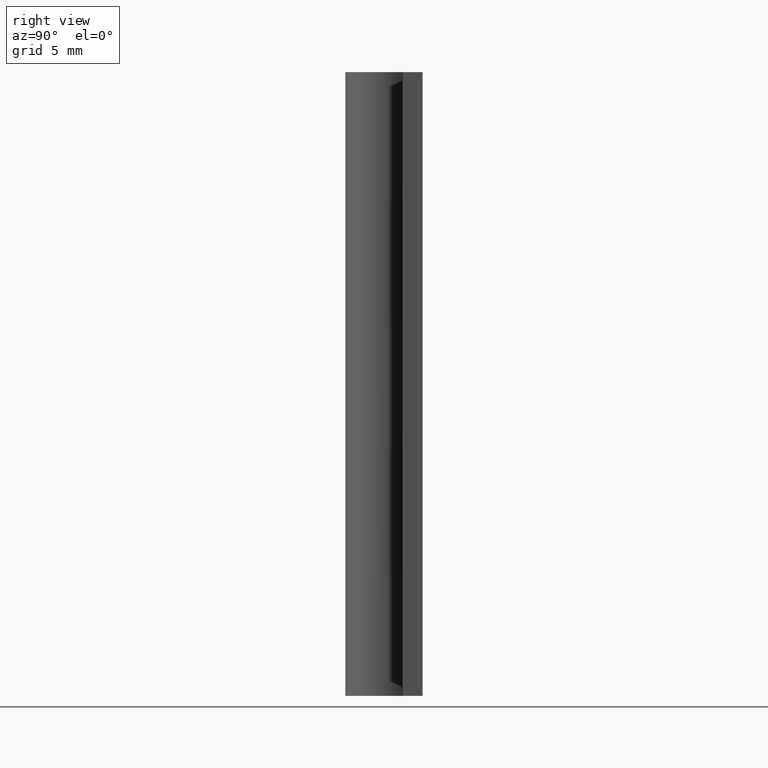
[diagram: clean part render]
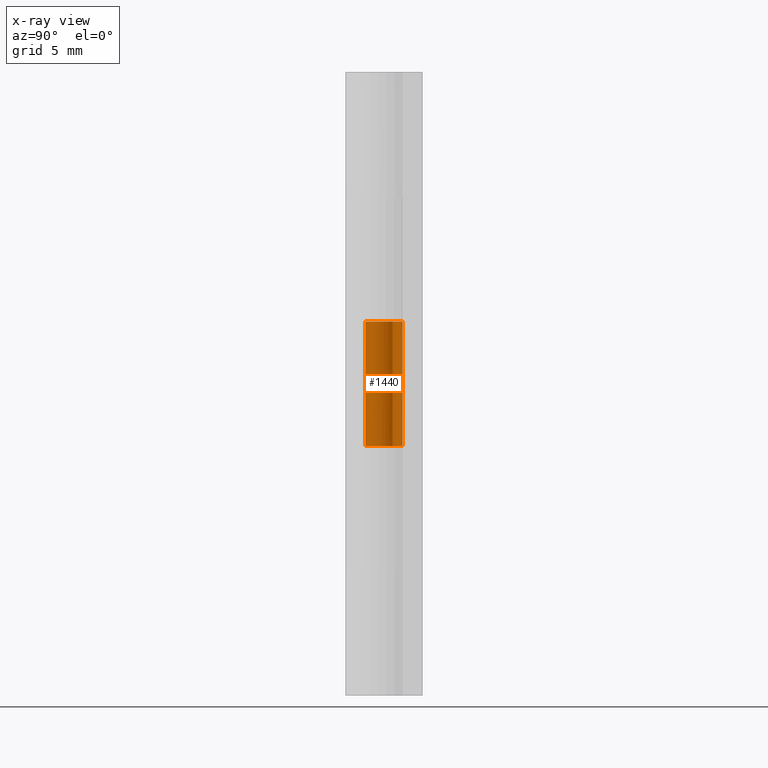
[diagram: x-ray — body ghosted, one internal face saturated and labeled with its STEP entity id]
A machine part, right view, then the same camera in x-ray: the body is ghosted and one INTERNAL B-rep face — a face not visible from any outside direction — is saturated and labeled: STEP entity #1440.
In plain terms, the highlighted face is a freeform B-spline surface patch.
Its self-contained STEP definition (entity closure, byte-faithful):
#789=CARTESIAN_POINT('',(-2.755364E-016,1.500000000000000,20.0));
#790=VERTEX_POINT('',#789);
#796=CARTESIAN_POINT('',(1.325797621821314,0.701612903225806,20.0));
#797=VERTEX_POINT('',#796);
#798=CARTESIAN_POINT('',(0.0,1.500000000000000,20.0));
#799=CARTESIAN_POINT('',(-1.140047230937307,1.500000000000000,19.999999999999996));
#800=CARTESIAN_POINT('',(-1.445249296287461,0.401565027835593,20.0));
#801=CARTESIAN_POINT('',(-1.750451361637613,-0.696869944328814,19.999999999999996));
#802=CARTESIAN_POINT('',(-0.773815431857394,-1.284994037892532,20.0));
#803=CARTESIAN_POINT('',(0.202820497922826,-1.873118131456252,19.999999999999996));
#804=CARTESIAN_POINT('',(1.030933009042892,-1.089576583295442,20.0));
#805=CARTESIAN_POINT('',(1.859045520162959,-0.306035035134632,19.999999999999996));
#806=CARTESIAN_POINT('',(1.325797621821315,0.701612903225806,20.0));
#814=(BOUNDED_CURVE()B_SPLINE_CURVE(2,(#798,#799,#800,#801,#802,#803,#804,#805,#806),.UNSPECIFIED.,.F.,.U.)B_SPLINE_CURVE_WITH_KNOTS((3,2,2,2,3),(0.0,0.250000000000000,0.500000000000000,0.750000000000000,1.0),.UNSPECIFIED.)CURVE()GEOMETRIC_REPRESENTATION_ITEM()RATIONAL_B_SPLINE_CURVE((1.0,0.796150117301085,1.0,0.796150117301085,1.0,0.796150117301085,1.0,0.796150117301085,1.0))REPRESENTATION_ITEM(''));
#815=EDGE_CURVE('',#790,#797,#814,.T.);
#979=CARTESIAN_POINT('',(1.325797621821316,0.701612903225806,29.999993000000099));
#980=VERTEX_POINT('',#979);
#986=CARTESIAN_POINT('',(-2.755364E-016,1.500000000000000,29.999993000000099));
#987=VERTEX_POINT('',#986);
#988=CARTESIAN_POINT('',(1.325797621821315,0.701612903225806,29.999993000000099));
#989=CARTESIAN_POINT('',(1.859045520162959,-0.306035035134632,29.999993000000092));
#990=CARTESIAN_POINT('',(1.030933009042893,-1.089576583295441,29.999993000000099));
#991=CARTESIAN_POINT('',(0.202820497922826,-1.873118131456252,29.999993000000092));
#992=CARTESIAN_POINT('',(-0.773815431857395,-1.284994037892532,29.999993000000099));
#993=CARTESIAN_POINT('',(-1.750451361637613,-0.696869944328814,29.999993000000092));
#994=CARTESIAN_POINT('',(-1.445249296287461,0.401565027835592,29.999993000000099));
#995=CARTESIAN_POINT('',(-1.140047230937308,1.500000000000000,29.999993000000092));
#996=CARTESIAN_POINT('',(0.0,1.500000000000000,29.999993000000099));
#1004=(BOUNDED_CURVE()B_SPLINE_CURVE(2,(#988,#989,#990,#991,#992,#993,#994,#995,#996),.UNSPECIFIED.,.F.,.U.)B_SPLINE_CURVE_WITH_KNOTS((3,2,2,2,3),(0.0,0.250000000000000,0.500000000000000,0.750000000000000,1.0),.UNSPECIFIED.)CURVE()GEOMETRIC_REPRESENTATION_ITEM()RATIONAL_B_SPLINE_CURVE((1.0,0.796150117301085,1.0,0.796150117301085,1.0,0.796150117301085,1.0,0.796150117301085,1.0))REPRESENTATION_ITEM(''));
#1005=EDGE_CURVE('',#980,#987,#1004,.T.);
#1404=CARTESIAN_POINT('',(0.039265422461812,1.499485987463336,30.249992825000110));
#1405=CARTESIAN_POINT('',(0.039265422461812,1.499485987463336,19.743750179374992));
#1406=CARTESIAN_POINT('',(-1.769013702307994,1.546837442799758,30.249992825000113));
#1407=CARTESIAN_POINT('',(-1.769013702307994,1.546837442799758,19.743750179374995));
#1408=CARTESIAN_POINT('',(-1.480843669676061,-0.238960302101282,30.249992825000110));
#1409=CARTESIAN_POINT('',(-1.480843669676061,-0.238960302101282,19.743750179374992));
#1410=CARTESIAN_POINT('',(-1.192673637044129,-2.024758047002321,30.249992825000113));
#1411=CARTESIAN_POINT('',(-1.192673637044129,-2.024758047002321,19.743750179374995));
#1412=CARTESIAN_POINT('',(0.508927867698074,-1.411025310006979,30.249992825000110));
#1413=CARTESIAN_POINT('',(0.508927867698074,-1.411025310006979,19.743750179374992));
#1414=CARTESIAN_POINT('',(2.210529372440278,-0.797292573011636,30.249992825000113));
#1415=CARTESIAN_POINT('',(2.210529372440278,-0.797292573011636,19.743750179374995));
#1416=CARTESIAN_POINT('',(1.292443740662290,0.761307544441054,30.249992825000110));
#1417=CARTESIAN_POINT('',(1.292443740662290,0.761307544441054,19.743750179374992));
#1425=(BOUNDED_SURFACE()B_SPLINE_SURFACE(1,2,((#1404,#1406,#1408,#1410,#1412,#1414,#1416),(#1405,#1407,#1409,#1411,#1413,#1415,#1417)),.UNSPECIFIED.,.F.,.F.,.U.)B_SPLINE_SURFACE_WITH_KNOTS((2,2),(3,2,2,3),(0.0,10.506242645625120),(0.0,2.819123256080202,5.638246512160404,8.457369768240607),.UNSPECIFIED.)GEOMETRIC_REPRESENTATION_ITEM()RATIONAL_B_SPLINE_SURFACE(((1.0,0.638320090924328,1.0,0.638320090924328,1.0,0.638320090924328,1.0),(1.0,0.638320090924328,1.0,0.638320090924328,1.0,0.638320090924328,1.0)))REPRESENTATION_ITEM('')SURFACE());
#1426=ORIENTED_EDGE('',*,*,#815,.F.);
#1427=CARTESIAN_POINT('',(-2.755364E-016,1.500000000000000,29.999993000000099));
#1428=CARTESIAN_POINT('',(-2.755364E-016,1.500000000000000,20.0));
#1429=QUASI_UNIFORM_CURVE('',1,(#1427,#1428),.UNSPECIFIED.,.F.,.U.);
#1430=EDGE_CURVE('',#987,#790,#1429,.T.);
#1431=ORIENTED_EDGE('',*,*,#1430,.F.);
#1432=ORIENTED_EDGE('',*,*,#1005,.F.);
#1433=CARTESIAN_POINT('',(1.325797621821316,0.701612903225806,29.999993000000099));
#1434=CARTESIAN_POINT('',(1.325797621821314,0.701612903225806,20.0));
#1435=QUASI_UNIFORM_CURVE('',1,(#1433,#1434),.UNSPECIFIED.,.F.,.U.);
#1436=EDGE_CURVE('',#980,#797,#1435,.T.);
#1437=ORIENTED_EDGE('',*,*,#1436,.T.);
#1438=EDGE_LOOP('',(#1426,#1431,#1432,#1437));
#1439=FACE_OUTER_BOUND('',#1438,.T.);
#1440=ADVANCED_FACE('',(#1439),#1425,.F.);